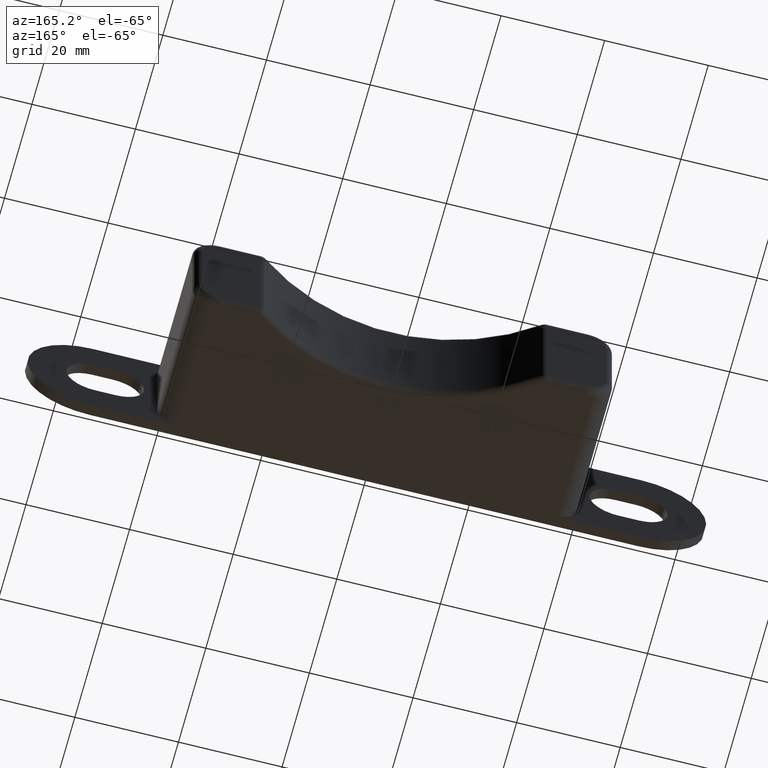
[diagram: clean part render]
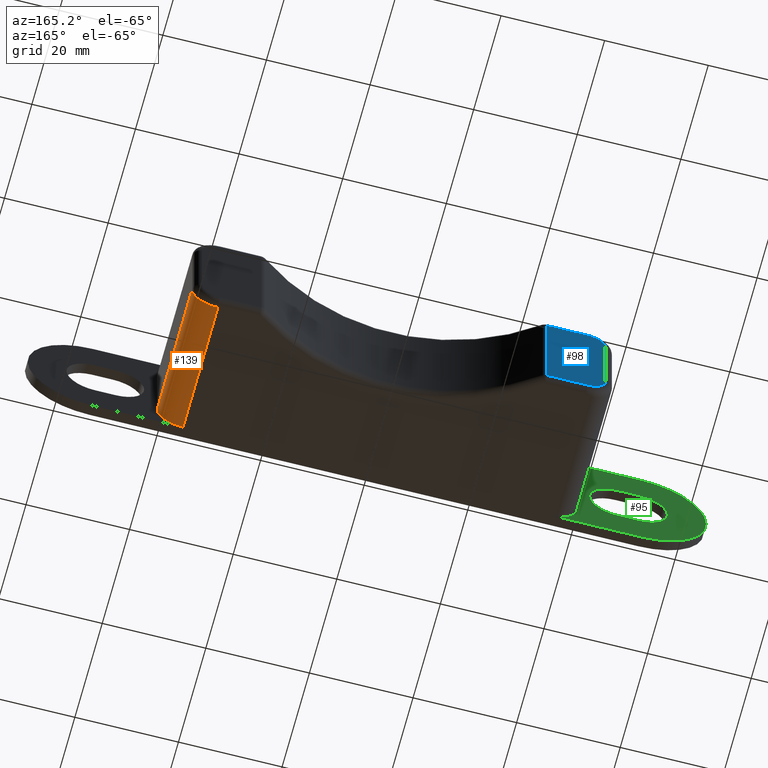
[diagram: same view with three faces highlighted in distinct colors, each labeled with its STEP entity id]
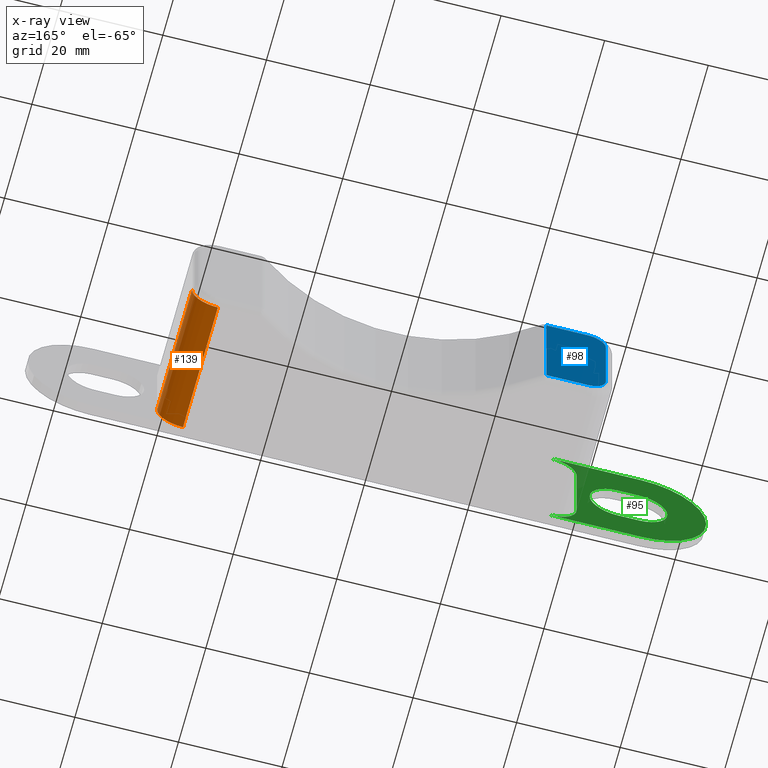
[diagram: x-ray of the same camera — body ghosted, the three highlighted faces saturated]
A machine part, auxiliary view with three faces highlighted in distinct colors.
The next image is the same camera in x-ray (body ghosted, the three faces saturated) — at least one of them is partly hidden behind the body in this view.
Their STEP definitions:

[orange] entity #139 — the highlighted cylindrical surface (edge-blend (fillet) strip) has radius 5 mm, axis along (-0, -1, 0).
#139 = ADVANCED_FACE( '', ( #750 ), #751, .T. );
#750 = FACE_OUTER_BOUND( '', #1774, .T. );
#751 = CYLINDRICAL_SURFACE( '', #1775, 5.00000000000000 );
#1774 = EDGE_LOOP( '', ( #3476, #3477, #3478, #3479 ) );
#1775 = AXIS2_PLACEMENT_3D( '', #3480, #3481, #3482 );
#3476 = ORIENTED_EDGE( '', *, *, #6892, .F. );
#3477 = ORIENTED_EDGE( '', *, *, #7033, .T. );
#3478 = ORIENTED_EDGE( '', *, *, #6908, .F. );
#3479 = ORIENTED_EDGE( '', *, *, #6914, .F. );
#3480 = CARTESIAN_POINT( '', ( 35.5000000000000, 1.99999999999999, -7.50000000000000 ) );
#3481 = DIRECTION( '', ( -6.93889390390723E-017, -1.00000000000000, 0.000000000000000 ) );
#3482 = DIRECTION( '', ( -1.00000000000000, 6.93889390390723E-017, 0.000000000000000 ) );
#6892 = EDGE_CURVE( '', #8515, #8517, #8518, .F. );
#6908 = EDGE_CURVE( '', #8543, #8544, #8545, .T. );
#6914 = EDGE_CURVE( '', #8517, #8543, #8554, .F. );
#7033 = EDGE_CURVE( '', #8515, #8544, #8759, .F. );
#8515 = VERTEX_POINT( '', #10928 );
#8517 = VERTEX_POINT( '', #10931 );
#8518 = LINE( '', #10932, #10933 );
#8543 = VERTEX_POINT( '', #10966 );
#8544 = VERTEX_POINT( '', #10967 );
#8545 = LINE( '', #10968, #10969 );
#8554 = CIRCLE( '', #10981, 5.00000000000000 );
#8759 = CIRCLE( '', #11257, 5.00000000000000 );
#10928 = CARTESIAN_POINT( '', ( 35.5000000000000, 27.5000000000000, -12.5000000000000 ) );
#10931 = CARTESIAN_POINT( '', ( 35.5000000000000, 1.99999999999999, -12.5000000000000 ) );
#10932 = CARTESIAN_POINT( '', ( 35.5000000000000, 65.0500000000000, -12.5000000000000 ) );
#10933 = VECTOR( '', #13198, 1000.00000000000 );
#10966 = CARTESIAN_POINT( '', ( 40.5000000000000, 1.99999999999999, -7.50000000000000 ) );
#10967 = CARTESIAN_POINT( '', ( 40.5000000000000, 27.5000000000000, -7.50000000000000 ) );
#10968 = CARTESIAN_POINT( '', ( 40.5000000000000, 1.99999999999999, -7.50000000000000 ) );
#10969 = VECTOR( '', #13228, 1000.00000000000 );
#10981 = AXIS2_PLACEMENT_3D( '', #13238, #13239, #13240 );
#11257 = AXIS2_PLACEMENT_3D( '', #13453, #13454, #13455 );
#13198 = DIRECTION( '', ( 6.93889390390723E-017, 1.00000000000000, 0.000000000000000 ) );
#13228 = DIRECTION( '', ( 6.93889390390723E-017, 1.00000000000000, 0.000000000000000 ) );
#13238 = CARTESIAN_POINT( '', ( 35.5000000000000, 1.99999999999999, -7.50000000000000 ) );
#13239 = DIRECTION( '', ( 0.000000000000000, 1.00000000000000, 0.000000000000000 ) );
#13240 = DIRECTION( '', ( 0.000000000000000, 0.000000000000000, 1.00000000000000 ) );
#13453 = CARTESIAN_POINT( '', ( 35.5000000000000, 27.5000000000000, -7.50000000000000 ) );
#13454 = DIRECTION( '', ( 0.000000000000000, 1.00000000000000, 0.000000000000000 ) );
#13455 = DIRECTION( '', ( 0.000000000000000, 0.000000000000000, 1.00000000000000 ) );

[blue] entity #98 — the highlighted planar face has unit normal (0, 1, 0).
#98 = ADVANCED_FACE( '', ( #668 ), #669, .T. );
#668 = FACE_OUTER_BOUND( '', #1692, .T. );
#669 = PLANE( '', #1693 );
#1692 = EDGE_LOOP( '', ( #3166, #3167, #3168, #3169, #3170, #3171 ) );
#1693 = AXIS2_PLACEMENT_3D( '', #3172, #3173, #3174 );
#3166 = ORIENTED_EDGE( '', *, *, #6876, .T. );
#3167 = ORIENTED_EDGE( '', *, *, #6873, .T. );
#3168 = ORIENTED_EDGE( '', *, *, #6868, .T. );
#3169 = ORIENTED_EDGE( '', *, *, #6878, .T. );
#3170 = ORIENTED_EDGE( '', *, *, #6922, .T. );
#3171 = ORIENTED_EDGE( '', *, *, #6923, .T. );
#3172 = CARTESIAN_POINT( '', ( -27.0166615258066, 29.0000000000000, -12.5000000000000 ) );
#3173 = DIRECTION( '', ( 0.000000000000000, 1.00000000000000, 0.000000000000000 ) );
#3174 = DIRECTION( '', ( 1.00000000000000, 0.000000000000000, 0.000000000000000 ) );
#6868 = EDGE_CURVE( '', #8476, #8474, #8477, .T. );
#6873 = EDGE_CURVE( '', #8481, #8476, #8485, .T. );
#6876 = EDGE_CURVE( '', #8486, #8481, #8490, .T. );
#6878 = EDGE_CURVE( '', #8474, #8491, #8493, .T. );
#6922 = EDGE_CURVE( '', #8491, #8568, #8569, .F. );
#6923 = EDGE_CURVE( '', #8568, #8486, #8570, .F. );
#8474 = VERTEX_POINT( '', #10876 );
#8476 = VERTEX_POINT( '', #10878 );
#8477 = LINE( '', #10879, #10880 );
#8481 = VERTEX_POINT( '', #10885 );
#8485 = CIRCLE( '', #10889, 3.50000000000000 );
#8486 = VERTEX_POINT( '', #10890 );
#8490 = LINE( '', #10895, #10896 );
#8491 = VERTEX_POINT( '', #10897 );
#8493 = CIRCLE( '', #10899, 3.50000000000000 );
#8568 = VERTEX_POINT( '', #10997 );
#8569 = LINE( '', #10998, #10999 );
#8570 = LINE( '', #11000, #11001 );
#10876 = CARTESIAN_POINT( '', ( -39.0000000000000, 29.0000000000000, 7.50000000000000 ) );
#10878 = CARTESIAN_POINT( '', ( -39.0000000000000, 29.0000000000000, -7.50000000000000 ) );
#10879 = CARTESIAN_POINT( '', ( -39.0000000000000, 29.0000000000000, -12.5000000000000 ) );
#10880 = VECTOR( '', #13150, 1000.00000000000 );
#10885 = CARTESIAN_POINT( '', ( -35.5000000000000, 29.0000000000000, -11.0000000000000 ) );
#10889 = AXIS2_PLACEMENT_3D( '', #13161, #13162, #13163 );
#10890 = CARTESIAN_POINT( '', ( -27.5118156434649, 29.0000000000000, -11.0000000000000 ) );
#10895 = CARTESIAN_POINT( '', ( -27.0166615258066, 29.0000000000000, -11.0000000000000 ) );
#10896 = VECTOR( '', #13168, 1000.00000000000 );
#10897 = CARTESIAN_POINT( '', ( -35.5000000000000, 29.0000000000000, 11.0000000000000 ) );
#10899 = AXIS2_PLACEMENT_3D( '', #13172, #13173, #13174 );
#10997 = CARTESIAN_POINT( '', ( -27.5118156434649, 29.0000000000000, 11.0000000000000 ) );
#10998 = CARTESIAN_POINT( '', ( -27.0166615258066, 29.0000000000000, 11.0000000000000 ) );
#10999 = VECTOR( '', #13258, 1000.00000000000 );
#11000 = CARTESIAN_POINT( '', ( -27.5118156434649, 29.0000000000000, -12.5000000000000 ) );
#11001 = VECTOR( '', #13259, 1000.00000000000 );
#13150 = DIRECTION( '', ( 0.000000000000000, 0.000000000000000, 1.00000000000000 ) );
#13161 = CARTESIAN_POINT( '', ( -35.5000000000000, 29.0000000000000, -7.50000000000000 ) );
#13162 = DIRECTION( '', ( 0.000000000000000, 1.00000000000000, 0.000000000000000 ) );
#13163 = DIRECTION( '', ( 0.000000000000000, 0.000000000000000, 1.00000000000000 ) );
#13168 = DIRECTION( '', ( -1.00000000000000, 0.000000000000000, 0.000000000000000 ) );
#13172 = CARTESIAN_POINT( '', ( -35.5000000000000, 29.0000000000000, 7.50000000000000 ) );
#13173 = DIRECTION( '', ( 0.000000000000000, 1.00000000000000, 0.000000000000000 ) );
#13174 = DIRECTION( '', ( 0.000000000000000, 0.000000000000000, 1.00000000000000 ) );
#13258 = DIRECTION( '', ( -1.00000000000000, 0.000000000000000, 0.000000000000000 ) );
#13259 = DIRECTION( '', ( 0.000000000000000, 0.000000000000000, 1.00000000000000 ) );

[green] entity #95 — the highlighted planar face has unit normal (0, 1, 0).
#95 = ADVANCED_FACE( '', ( #660, #661 ), #662, .T. );
#660 = FACE_OUTER_BOUND( '', #1684, .T. );
#661 = FACE_BOUND( '', #1685, .T. );
#662 = PLANE( '', #1686 );
#1684 = EDGE_LOOP( '', ( #3127, #3128, #3129, #3130, #3131, #3132, #3133 ) );
#1685 = EDGE_LOOP( '', ( #3134, #3135, #3136, #3137, #3138, #3139 ) );
#1686 = AXIS2_PLACEMENT_3D( '', #3140, #3141, #3142 );
#3127 = ORIENTED_EDGE( '', *, *, #6887, .T. );
#3128 = ORIENTED_EDGE( '', *, *, #6899, .T. );
#3129 = ORIENTED_EDGE( '', *, *, #6482, .F. );
#3130 = ORIENTED_EDGE( '', *, *, #6900, .T. );
#3131 = ORIENTED_EDGE( '', *, *, #6898, .F. );
#3132 = ORIENTED_EDGE( '', *, *, #6901, .T. );
#3133 = ORIENTED_EDGE( '', *, *, #6895, .T. );
#3134 = ORIENTED_EDGE( '', *, *, #6902, .T. );
#3135 = ORIENTED_EDGE( '', *, *, #6903, .T. );
#3136 = ORIENTED_EDGE( '', *, *, #6904, .T. );
#3137 = ORIENTED_EDGE( '', *, *, #6905, .T. );
#3138 = ORIENTED_EDGE( '', *, *, #6906, .T. );
#3139 = ORIENTED_EDGE( '', *, *, #6907, .T. );
#3140 = CARTESIAN_POINT( '', ( -40.5000000000000, 1.99999999999999, -12.5000000000000 ) );
#3141 = DIRECTION( '', ( 0.000000000000000, 1.00000000000000, 0.000000000000000 ) );
#3142 = DIRECTION( '', ( 1.00000000000000, 0.000000000000000, 0.000000000000000 ) );
#6482 = EDGE_CURVE( '', #7711, #7713, #7714, .T. );
#6887 = EDGE_CURVE( '', #8508, #8506, #8509, .T. );
#6895 = EDGE_CURVE( '', #8511, #8508, #8522, .T. );
#6898 = EDGE_CURVE( '', #8525, #8523, #8527, .T. );
#6899 = EDGE_CURVE( '', #8506, #7713, #8528, .T. );
#6900 = EDGE_CURVE( '', #7711, #8523, #8529, .F. );
#6901 = EDGE_CURVE( '', #8525, #8511, #8530, .F. );
#6902 = EDGE_CURVE( '', #8531, #8532, #8533, .T. );
#6903 = EDGE_CURVE( '', #8532, #8534, #8535, .T. );
#6904 = EDGE_CURVE( '', #8534, #8536, #8537, .T. );
#6905 = EDGE_CURVE( '', #8536, #8538, #8539, .T. );
#6906 = EDGE_CURVE( '', #8538, #8540, #8541, .T. );
#6907 = EDGE_CURVE( '', #8540, #8531, #8542, .T. );
#7711 = VERTEX_POINT( '', #9743 );
#7713 = VERTEX_POINT( '', #9746 );
#7714 = LINE( '', #9747, #9748 );
#8506 = VERTEX_POINT( '', #10916 );
#8508 = VERTEX_POINT( '', #10919 );
#8509 = CIRCLE( '', #10920, 12.5000000000000 );
#8511 = VERTEX_POINT( '', #10923 );
#8522 = LINE( '', #10939, #10940 );
#8523 = VERTEX_POINT( '', #10941 );
#8525 = VERTEX_POINT( '', #10944 );
#8527 = LINE( '', #10947, #10948 );
#8528 = CIRCLE( '', #10949, 12.5000000000000 );
#8529 = CIRCLE( '', #10950, 5.00000000000000 );
#8530 = CIRCLE( '', #10951, 5.00000000000000 );
#8531 = VERTEX_POINT( '', #10952 );
#8532 = VERTEX_POINT( '', #10953 );
#8533 = CIRCLE( '', #10954, 5.50000000000000 );
#8534 = VERTEX_POINT( '', #10955 );
#8535 = CIRCLE( '', #10956, 5.50000000000000 );
#8536 = VERTEX_POINT( '', #10957 );
#8537 = LINE( '', #10958, #10959 );
#8538 = VERTEX_POINT( '', #10960 );
#8539 = CIRCLE( '', #10961, 5.50000000000000 );
#8540 = VERTEX_POINT( '', #10962 );
#8541 = CIRCLE( '', #10963, 5.50000000000000 );
#8542 = LINE( '', #10964, #10965 );
#9743 = CARTESIAN_POINT( '', ( -35.5000000000000, 1.99999999999999, 12.5000000000000 ) );
#9746 = CARTESIAN_POINT( '', ( -53.0000000000000, 1.99999999999999, 12.5000000000000 ) );
#9747 = CARTESIAN_POINT( '', ( -40.5000000000000, 1.99999999999999, 12.5000000000000 ) );
#9748 = VECTOR( '', #12730, 1000.00000000000 );
#10916 = CARTESIAN_POINT( '', ( -65.5000000000000, 1.99999999999999, 0.000000000000000 ) );
#10919 = CARTESIAN_POINT( '', ( -53.0000000000000, 1.99999999999999, -12.5000000000000 ) );
#10920 = AXIS2_PLACEMENT_3D( '', #13189, #13190, #13191 );
#10923 = CARTESIAN_POINT( '', ( -35.5000000000000, 1.99999999999999, -12.5000000000000 ) );
#10939 = CARTESIAN_POINT( '', ( -40.5000000000000, 1.99999999999999, -12.5000000000000 ) );
#10940 = VECTOR( '', #13201, 1000.00000000000 );
#10941 = CARTESIAN_POINT( '', ( -40.5000000000000, 1.99999999999999, 7.50000000000000 ) );
#10944 = CARTESIAN_POINT( '', ( -40.5000000000000, 1.99999999999999, -7.50000000000000 ) );
#10947 = CARTESIAN_POINT( '', ( -40.5000000000000, 1.99999999999999, -12.5000000000000 ) );
#10948 = VECTOR( '', #13204, 1000.00000000000 );
#10949 = AXIS2_PLACEMENT_3D( '', #13205, #13206, #13207 );
#10950 = AXIS2_PLACEMENT_3D( '', #13208, #13209, #13210 );
#10951 = AXIS2_PLACEMENT_3D( '', #13211, #13212, #13213 );
#10952 = CARTESIAN_POINT( '', ( -52.5000000000000, 2.00000200001438, 5.50000000000001 ) );
#10953 = CARTESIAN_POINT( '', ( -58.0000000000000, 2.00000200001438, 6.93889390390723E-015 ) );
#10954 = AXIS2_PLACEMENT_3D( '', #13214, #13215, #13216 );
#10955 = CARTESIAN_POINT( '', ( -52.5000000000000, 2.00000200001438, -5.50000000000000 ) );
#10956 = AXIS2_PLACEMENT_3D( '', #13217, #13218, #13219 );
#10957 = CARTESIAN_POINT( '', ( -48.5000000000000, 2.00000200001438, -5.50000000000000 ) );
#10958 = CARTESIAN_POINT( '', ( -52.5000000000000, 2.00000200001438, -5.50000000000000 ) );
#10959 = VECTOR( '', #13220, 1000.00000000000 );
#10960 = CARTESIAN_POINT( '', ( -43.0000000000000, 2.00000200001438, 2.60208521396521E-015 ) );
#10961 = AXIS2_PLACEMENT_3D( '', #13221, #13222, #13223 );
#10962 = CARTESIAN_POINT( '', ( -48.5000000000000, 2.00000200001438, 5.50000000000001 ) );
#10963 = AXIS2_PLACEMENT_3D( '', #13224, #13225, #13226 );
#10964 = CARTESIAN_POINT( '', ( -48.5000000000000, 2.00000200001438, 5.50000000000001 ) );
#10965 = VECTOR( '', #13227, 1000.00000000000 );
#12730 = DIRECTION( '', ( -1.00000000000000, 0.000000000000000, 0.000000000000000 ) );
#13189 = CARTESIAN_POINT( '', ( -53.0000000000000, 1.99999999999999, 0.000000000000000 ) );
#13190 = DIRECTION( '', ( 0.000000000000000, 1.00000000000000, 0.000000000000000 ) );
#13191 = DIRECTION( '', ( 0.000000000000000, 0.000000000000000, 1.00000000000000 ) );
#13201 = DIRECTION( '', ( -1.00000000000000, 0.000000000000000, 0.000000000000000 ) );
#13204 = DIRECTION( '', ( 0.000000000000000, 0.000000000000000, 1.00000000000000 ) );
#13205 = CARTESIAN_POINT( '', ( -53.0000000000000, 1.99999999999999, 0.000000000000000 ) );
#13206 = DIRECTION( '', ( 0.000000000000000, 1.00000000000000, 0.000000000000000 ) );
#13207 = DIRECTION( '', ( 0.000000000000000, 0.000000000000000, 1.00000000000000 ) );
#13208 = CARTESIAN_POINT( '', ( -35.5000000000000, 1.99999999999999, 7.50000000000000 ) );
#13209 = DIRECTION( '', ( 0.000000000000000, 1.00000000000000, 0.000000000000000 ) );
#13210 = DIRECTION( '', ( 0.000000000000000, 0.000000000000000, 1.00000000000000 ) );
#13211 = CARTESIAN_POINT( '', ( -35.5000000000000, 1.99999999999999, -7.50000000000000 ) );
#13212 = DIRECTION( '', ( 0.000000000000000, 1.00000000000000, 0.000000000000000 ) );
#13213 = DIRECTION( '', ( 0.000000000000000, 0.000000000000000, 1.00000000000000 ) );
#13214 = CARTESIAN_POINT( '', ( -52.5000000000000, 2.00000200001438, 6.07153216591882E-015 ) );
#13215 = DIRECTION( '', ( 0.000000000000000, -1.00000000000000, 0.000000000000000 ) );
#13216 = DIRECTION( '', ( 1.15648231731787E-016, 0.000000000000000, 1.00000000000000 ) );
#13217 = CARTESIAN_POINT( '', ( -52.5000000000000, 2.00000200001438, 2.60208521396521E-015 ) );
#13218 = DIRECTION( '', ( 0.000000000000000, -1.00000000000000, 0.000000000000000 ) );
#13219 = DIRECTION( '', ( -1.00000000000000, 0.000000000000000, -4.20539024479228E-017 ) );
#13220 = DIRECTION( '', ( 1.00000000000000, 0.000000000000000, -1.15648231731787E-016 ) );
#13221 = CARTESIAN_POINT( '', ( -48.5000000000000, 2.00000200001438, 2.60208521396521E-015 ) );
#13222 = DIRECTION( '', ( 0.000000000000000, -1.00000000000000, 0.000000000000000 ) );
#13223 = DIRECTION( '', ( -1.15648231731787E-016, 0.000000000000000, -1.00000000000000 ) );
#13224 = CARTESIAN_POINT( '', ( -48.5000000000000, 2.00000200001438, 6.07153216591882E-015 ) );
#13225 = DIRECTION( '', ( 0.000000000000000, -1.00000000000000, 0.000000000000000 ) );
#13226 = DIRECTION( '', ( 1.00000000000000, 0.000000000000000, -1.15648231731787E-016 ) );
#13227 = DIRECTION( '', ( -1.00000000000000, 0.000000000000000, 1.15648231731787E-016 ) );